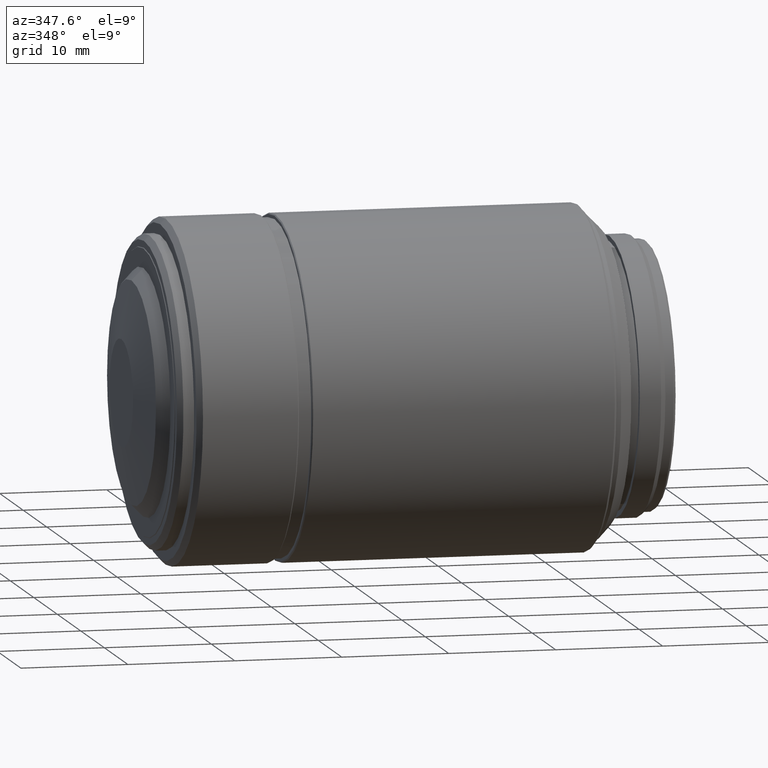
[diagram: clean part render]
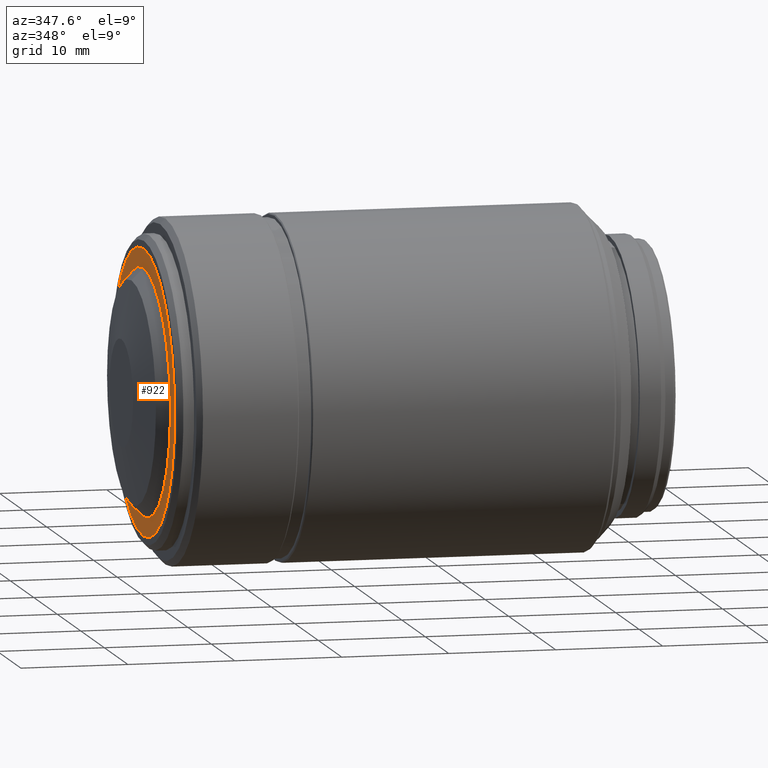
[diagram: same view with one face highlighted and labeled with its STEP entity id]
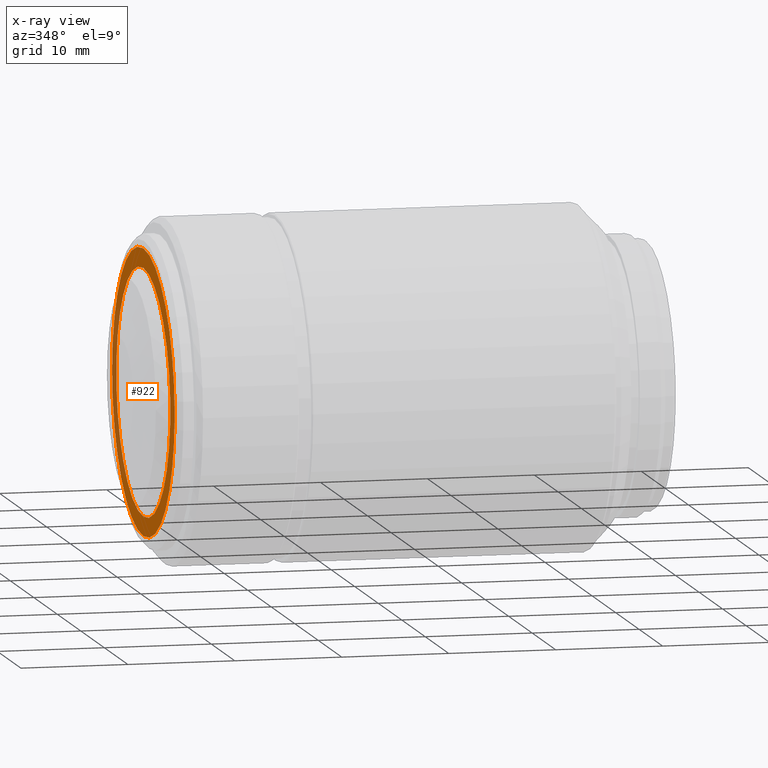
[diagram: x-ray of the same camera — body ghosted, the highlighted face saturated]
A machine part, auxiliary view. The second image highlights one B-rep face of the part: STEP entity #922.
The next image is the same camera in x-ray: the body ghosted, the highlighted face saturated — about 21% of this face is hidden behind the body in this view.
In plain terms, the highlighted planar face has unit normal (-1, 0, 0).
Its self-contained STEP definition (entity closure, byte-faithful):
#31 = DIRECTION ( 'NONE',  ( 1.000000000000000000, 0.000000000000000000, 0.000000000000000000 ) ) ;
#111 = CARTESIAN_POINT ( 'NONE',  ( 2.413493257336150055, 0.000000000000000000, 0.000000000000000000 ) ) ;
#165 = FACE_BOUND ( 'NONE', #1322, .T. ) ;
#209 = AXIS2_PLACEMENT_3D ( 'NONE', #446, #211, #338 ) ;
#211 = DIRECTION ( 'NONE',  ( -1.000000000000000000, 0.000000000000000000, 0.000000000000000000 ) ) ;
#254 = CARTESIAN_POINT ( 'NONE',  ( 2.413493257336150055, 0.000000000000000000, 0.000000000000000000 ) ) ;
#264 = CIRCLE ( 'NONE', #1149, 11.50000000000000000 ) ;
#271 = VERTEX_POINT ( 'NONE', #638 ) ;
#272 = CARTESIAN_POINT ( 'NONE',  ( 2.413493257336150055, 0.000000000000000000, 0.000000000000000000 ) ) ;
#273 = EDGE_CURVE ( 'NONE', #855, #399, #1059, .T. ) ;
#275 = DIRECTION ( 'NONE',  ( 1.000000000000000000, 0.000000000000000000, 0.000000000000000000 ) ) ;
#311 = CIRCLE ( 'NONE', #505, 11.50000000000000000 ) ;
#334 = ORIENTED_EDGE ( 'NONE', *, *, #273, .F. ) ;
#338 = DIRECTION ( 'NONE',  ( 0.000000000000000000, 0.000000000000000000, 1.000000000000000000 ) ) ;
#399 = VERTEX_POINT ( 'NONE', #896 ) ;
#446 = CARTESIAN_POINT ( 'NONE',  ( 2.413493257336150055, 12.40000000000000036, 0.000000000000000000 ) ) ;
#505 = AXIS2_PLACEMENT_3D ( 'NONE', #254, #1476, #873 ) ;
#511 = ORIENTED_EDGE ( 'NONE', *, *, #782, .T. ) ;
#589 = DIRECTION ( 'NONE',  ( 1.000000000000000000, 0.000000000000000000, 0.000000000000000000 ) ) ;
#594 = ORIENTED_EDGE ( 'NONE', *, *, #1115, .T. ) ;
#631 = EDGE_LOOP ( 'NONE', ( #334, #887 ) ) ;
#638 = CARTESIAN_POINT ( 'NONE',  ( 2.413493257336150055, -11.50000000000000000, 0.000000000000000000 ) ) ;
#671 = CARTESIAN_POINT ( 'NONE',  ( 2.413493257336150055, 0.000000000000000000, 0.000000000000000000 ) ) ;
#777 = DIRECTION ( 'NONE',  ( 0.000000000000000000, 1.000000000000000000, 0.000000000000000000 ) ) ;
#782 = EDGE_CURVE ( 'NONE', #271, #997, #311, .T. ) ;
#855 = VERTEX_POINT ( 'NONE', #995 ) ;
#873 = DIRECTION ( 'NONE',  ( 0.000000000000000000, 1.000000000000000000, 0.000000000000000000 ) ) ;
#887 = ORIENTED_EDGE ( 'NONE', *, *, #1302, .F. ) ;
#896 = CARTESIAN_POINT ( 'NONE',  ( 2.413493257336150055, 13.29999999999999893, -1.628780242865979955E-15 ) ) ;
#922 = ADVANCED_FACE ( 'NONE', ( #1130, #165 ), #1417, .T. ) ;
#995 = CARTESIAN_POINT ( 'NONE',  ( 2.413493257336150055, -13.29999999999999893, 0.000000000000000000 ) ) ;
#997 = VERTEX_POINT ( 'NONE', #1202 ) ;
#1005 = AXIS2_PLACEMENT_3D ( 'NONE', #671, #275, #1490 ) ;
#1059 = CIRCLE ( 'NONE', #1005, 13.29999999999999893 ) ;
#1073 = DIRECTION ( 'NONE',  ( 0.000000000000000000, 1.000000000000000000, 0.000000000000000000 ) ) ;
#1115 = EDGE_CURVE ( 'NONE', #997, #271, #264, .T. ) ;
#1130 = FACE_OUTER_BOUND ( 'NONE', #631, .T. ) ;
#1149 = AXIS2_PLACEMENT_3D ( 'NONE', #111, #589, #1073 ) ;
#1202 = CARTESIAN_POINT ( 'NONE',  ( 2.413493257336150055, 11.50000000000000000, -1.408343819019459923E-15 ) ) ;
#1302 = EDGE_CURVE ( 'NONE', #399, #855, #1494, .T. ) ;
#1322 = EDGE_LOOP ( 'NONE', ( #511, #594 ) ) ;
#1417 = PLANE ( 'NONE',  #209 ) ;
#1442 = AXIS2_PLACEMENT_3D ( 'NONE', #272, #31, #777 ) ;
#1476 = DIRECTION ( 'NONE',  ( 1.000000000000000000, 0.000000000000000000, 0.000000000000000000 ) ) ;
#1490 = DIRECTION ( 'NONE',  ( 0.000000000000000000, 1.000000000000000000, 0.000000000000000000 ) ) ;
#1494 = CIRCLE ( 'NONE', #1442, 13.29999999999999893 ) ;